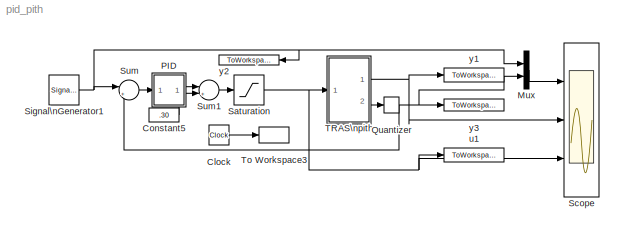
MODEL pid_pith
KIND model
CONFIG AbsTol = auto
CONFIG FixedStep = .01
CONFIG MaxStep = auto
CONFIG MinStep = auto
CONFIG RelTol = 1e-3
CONFIG Solver = ode5
CONFIG SolverMode = Auto
CONFIG StartTime = 0.0
CONFIG StopTime = 75
BLOCK [Clock] Clock
  Decimation = 1
BLOCK [Constant] Constant5
  Value = .30
BLOCK [Mux] Mux
  DisplayOption = bar
  Inputs = 2
  Ports = [2, 1]
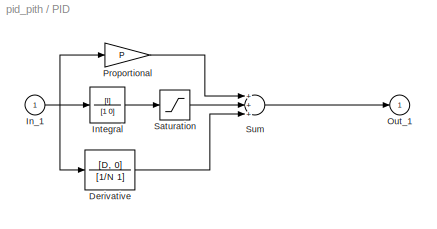
BLOCK [SubSystem] PID 
  AncestorBlock = simulink_extras/Additional\nLinear/PID Controller\n(with Approximate\nDerivative)
  MaskCallbackString = ||||
  MaskDescription = Enter Proportional(P), Integral(I), and Derivative(D) and divisor (N) terms.\nP+I/s+Ds/(1/Ns+1)
  MaskDisplay = disp('PID')
  MaskEnableString = on,on,on,on,on
  MaskHelp = This block implements a PID controller where parameters are entered for the Proportional, Integral and Derivative and divisor terms. Unmask this block to see how it works. The derivative term is implemented using an s/(s/N +1)  transfer function block. Making N large can create a \"stiff\" system.
  MaskIconFrame = on
  MaskIconOpaque = on
  MaskIconRotate = none
  MaskIconUnits = autoscale
  MaskPromptString = Proportional:|Integral:|Derivative:|Derivative divisor(N):|Integral sat (0-1)
  MaskStyleString = edit,edit,edit,edit,edit
  MaskToolTipString = on,on,on,on,on
  MaskTunableValueString = on,on,on,on,on
  MaskType = PID(2) Controller
  MaskValueString = a|b|c|100|1.43
  MaskVarAliasString = ,,,,
  MaskVariables = P=@1;I=@2;D=@3;N=@4;S=@5;
  MaskVisibilityString = on,on,on,on,on
  Ports = [1, 1]
  TreatAsAtomicUnit = off
BLOCK [TransferFcn] PID /Derivative
  Denominator = [1/N 1]
  Numerator = [D, 0]
BLOCK [Inport] PID /In_1
BLOCK [TransferFcn] PID /Integral
  Denominator = [1 0]
  Numerator = [I]
BLOCK [Outport] PID /Out_1
  InitialOutput = 0
BLOCK [Gain] PID /Proportional
  Gain = P
BLOCK [Saturate] PID /Saturation
  LowerLimit = -S
  UpperLimit = S
BLOCK [Sum] PID /Sum
  Inputs = +++
  Ports = [3, 1]
BLOCK [Quantizer] Quantizer
  QuantizationInterval = (2*pi)/4096
BLOCK [Saturate] Saturation
  LowerLimit = .2
  UpperLimit = 1
BLOCK [Scope] Scope
  DataFormat = StructureWithTime
  MaxDataPoints = 50000
  NumInputPorts = 3
  Ports = [3]
  YMax = 1~3000~1
  YMin = -1.5~0~0
BLOCK [SignalGenerator] Signal\nGenerator1
  Amplitude = .10
  Frequency = .02
  WaveForm = square
BLOCK [Sum] Sum
  IconShape = round
  InputSameDT = off
  Inputs = |+-
  OutDataTypeMode = Inherit via internal rule
  Ports = [2, 1]
BLOCK [Sum] Sum1
  IconShape = round
  Inputs = |++
  Ports = [2, 1]
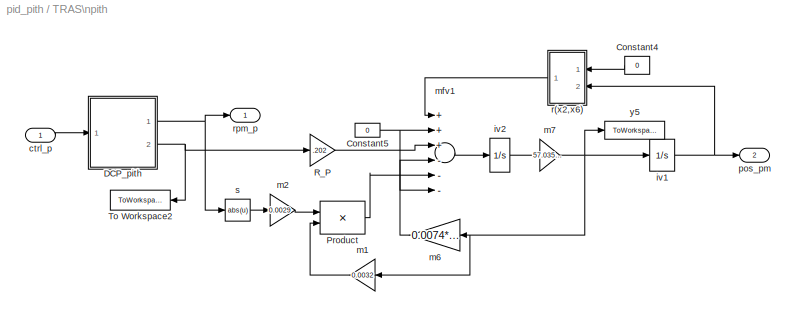
BLOCK [SubSystem] TRAS\npith
  Ports = [1, 2]
  TreatAsAtomicUnit = off
BLOCK [Constant] TRAS\npith/Constant4
  Value = 0
BLOCK [Constant] TRAS\npith/Constant5
  Value = 0
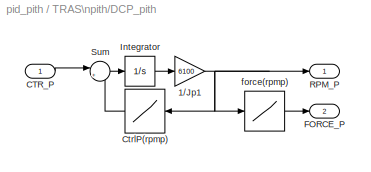
BLOCK [SubSystem] TRAS\npith/DCP_pith
  Ports = [1, 2]
  TreatAsAtomicUnit = off
BLOCK [Gain] TRAS\npith/DCP_pith/1//Jp1
  Gain = 6100
  SaturateOnIntegerOverflow = off
  ShowAdditionalParam = on
BLOCK [Inport] TRAS\npith/DCP_pith/CTR_P
BLOCK [Lookup] TRAS\npith/DCP_pith/CtrlP(rpmp)
  InputValues = rpm_p
  OutputValues = control_p
BLOCK [Outport] TRAS\npith/DCP_pith/FORCE_P
  Port = 2
BLOCK [Integrator] TRAS\npith/DCP_pith/Integrator
  Ports = [1, 1]
BLOCK [Outport] TRAS\npith/DCP_pith/RPM_P
BLOCK [Sum] TRAS\npith/DCP_pith/Sum
  IconShape = round
  Inputs = |+-
  Ports = [2, 1]
BLOCK [Lookup] TRAS\npith/DCP_pith/force(rpmp)
  InputValues = rpm_p
  OutputValues = force_p
BLOCK [Product] TRAS\npith/Product
  InputSameDT = off
  Ports = [2, 1]
BLOCK [Gain] TRAS\npith/R_P
  Gain = .202
  SaturateOnIntegerOverflow = off
BLOCK [ToWorkspace] TRAS\npith/To Workspace2
  MaxDataPoints = inf
  SampleTime = -1
  SaveFormat = Array
  VariableName = force_pm
BLOCK [Inport] TRAS\npith/ctrl_p
BLOCK [Integrator] TRAS\npith/iv1
  InitialCondition = -.5319*0
  LowerSaturationLimit = -pi
  Ports = [1, 1]
  UpperSaturationLimit = pi
BLOCK [Integrator] TRAS\npith/iv2
  InitialCondition = -.1
  LimitOutput = on
  LowerSaturationLimit = -pi
  Ports = [1, 1]
  UpperSaturationLimit = pi
BLOCK [Gain] TRAS\npith/m1
  Gain = 0.0032
BLOCK [Gain] TRAS\npith/m2
  Gain = 0.0029
BLOCK [Gain] TRAS\npith/m6
  Gain = 0.0074*1.7175
  SaturateOnIntegerOverflow = off
BLOCK [Gain] TRAS\npith/m7
  Gain = 57.0357*0.5833
BLOCK [Sum] TRAS\npith/mfv1
  Inputs = +++---
  Ports = [6, 1]
BLOCK [Outport] TRAS\npith/pos_pm
  Port = 2
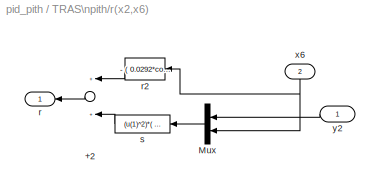
BLOCK [SubSystem] TRAS\npith/r(x2,x6)
  Ports = [2, 1]
  TreatAsAtomicUnit = off
BLOCK [Sum] TRAS\npith/r(x2,x6)/+2
  Ports = [2, 1]
BLOCK [Mux] TRAS\npith/r(x2,x6)/Mux
  DisplayOption = bar
  Inputs = 2
  Ports = [2, 1]
BLOCK [Outport] TRAS\npith/r(x2,x6)/r
BLOCK [Fcn] TRAS\npith/r(x2,x6)/r2
  Expr = - ( 0.0292*cos(u)+ 0.0546*sin(u))*1.7143
BLOCK [Fcn] TRAS\npith/r(x2,x6)/s
  Expr = (u(1)^2)*(   -1.40920355960000 *sin(u(2))*cos(u(2)))
BLOCK [Inport] TRAS\npith/r(x2,x6)/x6
  Port = 2
BLOCK [Inport] TRAS\npith/r(x2,x6)/y2
BLOCK [Outport] TRAS\npith/rpm_p
BLOCK [Fcn] TRAS\npith/s
  Expr = abs(u)
BLOCK [ToWorkspace] TRAS\npith/y5
  MaxDataPoints = inf
  SampleTime = -1
  SaveFormat = Array
  VariableName = vel_pm
BLOCK [ToWorkspace] To Workspace3
  MaxDataPoints = inf
  SampleTime = -1
  SaveFormat = Array
  VariableName = t
BLOCK [ToWorkspace] u1
  MaxDataPoints = inf
  SampleTime = -1
  SaveFormat = Array
  VariableName = control_pm
BLOCK [ToWorkspace] y1
  MaxDataPoints = inf
  SampleTime = -1
  SaveFormat = Array
  VariableName = rpm_pm
BLOCK [ToWorkspace] y2
  MaxDataPoints = inf
  SampleTime = -1
  SaveFormat = Array
  VariableName = pos_pd
BLOCK [ToWorkspace] y3
  MaxDataPoints = inf
  SampleTime = -1
  SaveFormat = Array
  VariableName = pos_pm
LINE Clock:1 -> To Workspace3:1
LINE Constant5:1 -> Sum1:2
LINE Mux:1 -> Scope:1
LINE PID /Derivative:1 -> PID /Sum:3
NET PID /In_1:1 -> PID /Derivative:1, PID /Integral:1, PID /Proportional:1
LINE PID /Integral:1 -> PID /Saturation:1
LINE PID /Proportional:1 -> PID /Sum:1
LINE PID /Saturation:1 -> PID /Sum:2
LINE PID /Sum:1 -> PID /Out_1:1
LINE PID :1 -> Sum1:1
NET Quantizer:1 -> Mux:2, Sum:2, y3:1
NET Saturation:1 -> Scope:3, TRAS\npith:1, u1:1
NET Signal\nGenerator1:1 -> Mux:1, Sum:1, y2:1
LINE Sum1:1 -> Saturation:1
LINE Sum:1 -> PID :1
LINE TRAS\npith/Constant4:1 -> TRAS\npith/r(x2,x6):1
NET TRAS\npith/Constant5:1 -> TRAS\npith/mfv1:2, TRAS\npith/mfv1:6
NET TRAS\npith/DCP_pith/1//Jp1:1 -> TRAS\npith/DCP_pith/CtrlP(rpmp):1, TRAS\npith/DCP_pith/RPM_P:1, TRAS\npith/DCP_pith/force(rpmp):1
LINE TRAS\npith/DCP_pith/CTR_P:1 -> TRAS\npith/DCP_pith/Sum:1
LINE TRAS\npith/DCP_pith/CtrlP(rpmp):1 -> TRAS\npith/DCP_pith/Sum:2
LINE TRAS\npith/DCP_pith/Integrator:1 -> TRAS\npith/DCP_pith/1//Jp1:1
LINE TRAS\npith/DCP_pith/Sum:1 -> TRAS\npith/DCP_pith/Integrator:1
LINE TRAS\npith/DCP_pith/force(rpmp):1 -> TRAS\npith/DCP_pith/FORCE_P:1
NET TRAS\npith/DCP_pith:1 -> TRAS\npith/rpm_p:1, TRAS\npith/s:1
NET TRAS\npith/DCP_pith:2 -> TRAS\npith/R_P:1, TRAS\npith/To Workspace2:1
LINE TRAS\npith/Product:1 -> TRAS\npith/mfv1:5
LINE TRAS\npith/R_P:1 -> TRAS\npith/mfv1:3
LINE TRAS\npith/ctrl_p:1 -> TRAS\npith/DCP_pith:1
NET TRAS\npith/iv1:1 -> TRAS\npith/pos_pm:1, TRAS\npith/r(x2,x6):2
LINE TRAS\npith/iv2:1 -> TRAS\npith/m7:1
LINE TRAS\npith/m1:1 -> TRAS\npith/Product:2
LINE TRAS\npith/m2:1 -> TRAS\npith/Product:1
LINE TRAS\npith/m6:1 -> TRAS\npith/mfv1:4
NET TRAS\npith/m7:1 -> TRAS\npith/iv1:1, TRAS\npith/m1:1, TRAS\npith/m6:1, TRAS\npith/y5:1
LINE TRAS\npith/mfv1:1 -> TRAS\npith/iv2:1
LINE TRAS\npith/r(x2,x6)/+2:1 -> TRAS\npith/r(x2,x6)/r:1
LINE TRAS\npith/r(x2,x6)/Mux:1 -> TRAS\npith/r(x2,x6)/s:1
LINE TRAS\npith/r(x2,x6)/r2:1 -> TRAS\npith/r(x2,x6)/+2:1
LINE TRAS\npith/r(x2,x6)/s:1 -> TRAS\npith/r(x2,x6)/+2:2
NET TRAS\npith/r(x2,x6)/x6:1 -> TRAS\npith/r(x2,x6)/Mux:2, TRAS\npith/r(x2,x6)/r2:1
LINE TRAS\npith/r(x2,x6)/y2:1 -> TRAS\npith/r(x2,x6)/Mux:1
LINE TRAS\npith/r(x2,x6):1 -> TRAS\npith/mfv1:1
LINE TRAS\npith/s:1 -> TRAS\npith/m2:1
NET TRAS\npith:1 -> Scope:2, y1:1
LINE TRAS\npith:2 -> Quantizer:1
note: NET lines group one-source signal fan-out (src -> all destinations, sorted); 1:1 wires keep LINE
